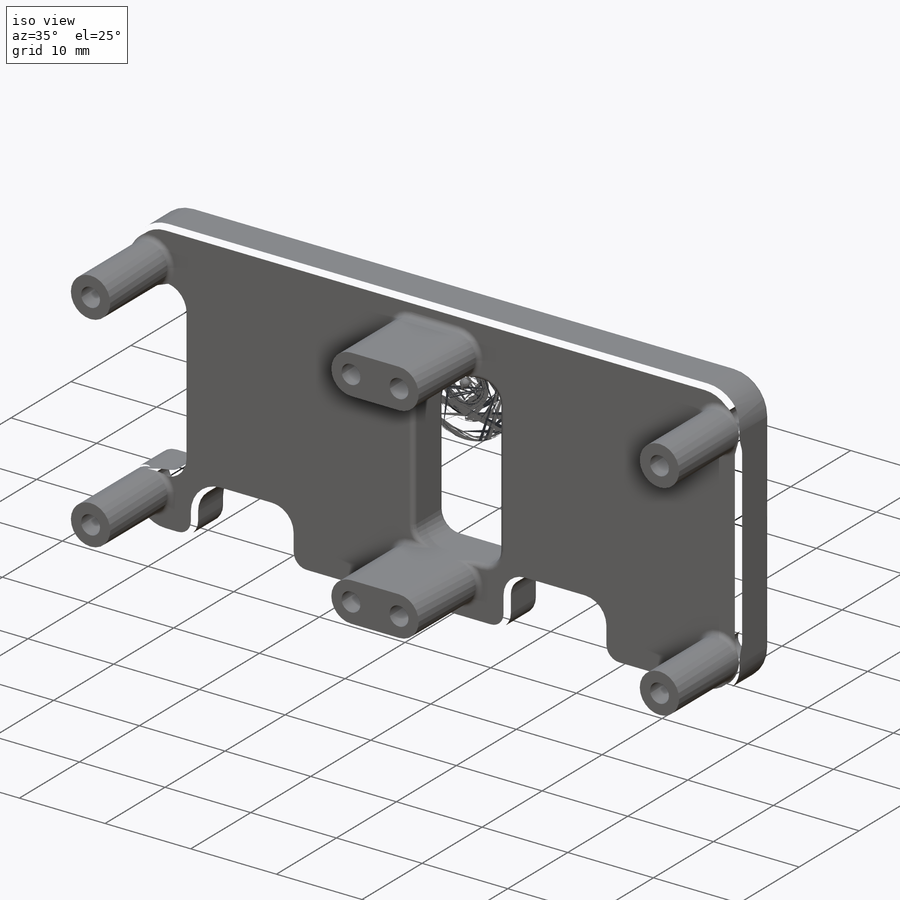
[diagram: iso view]
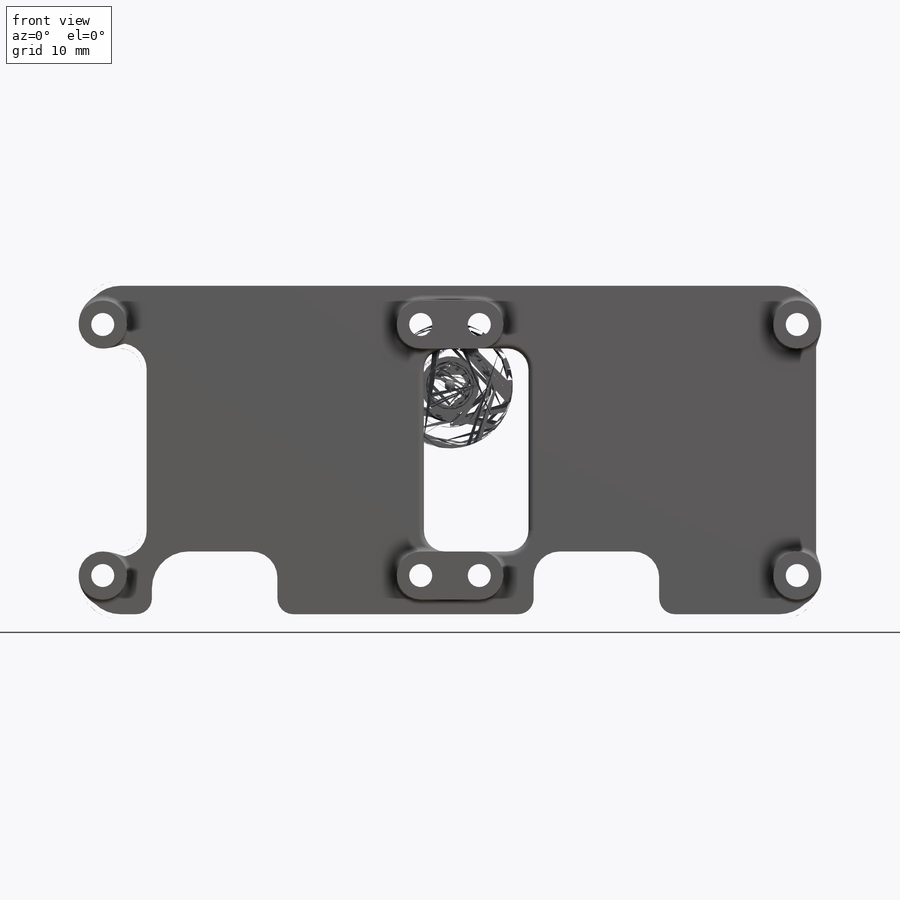
[diagram: front view]
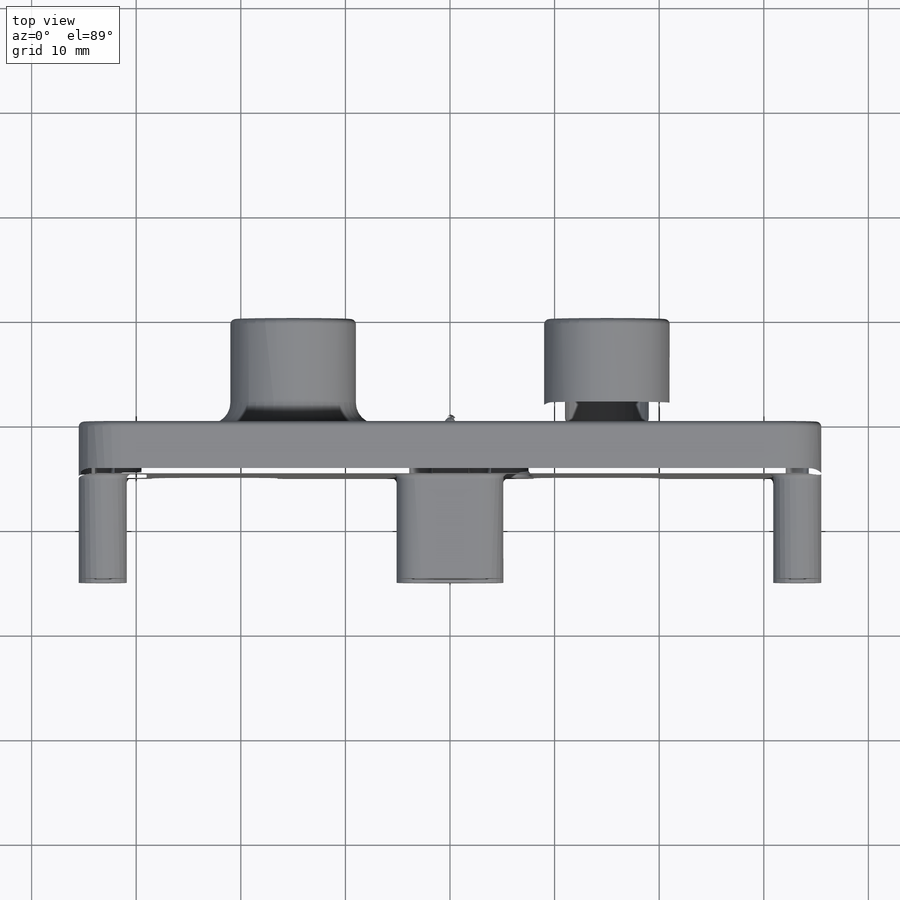
[diagram: top view]
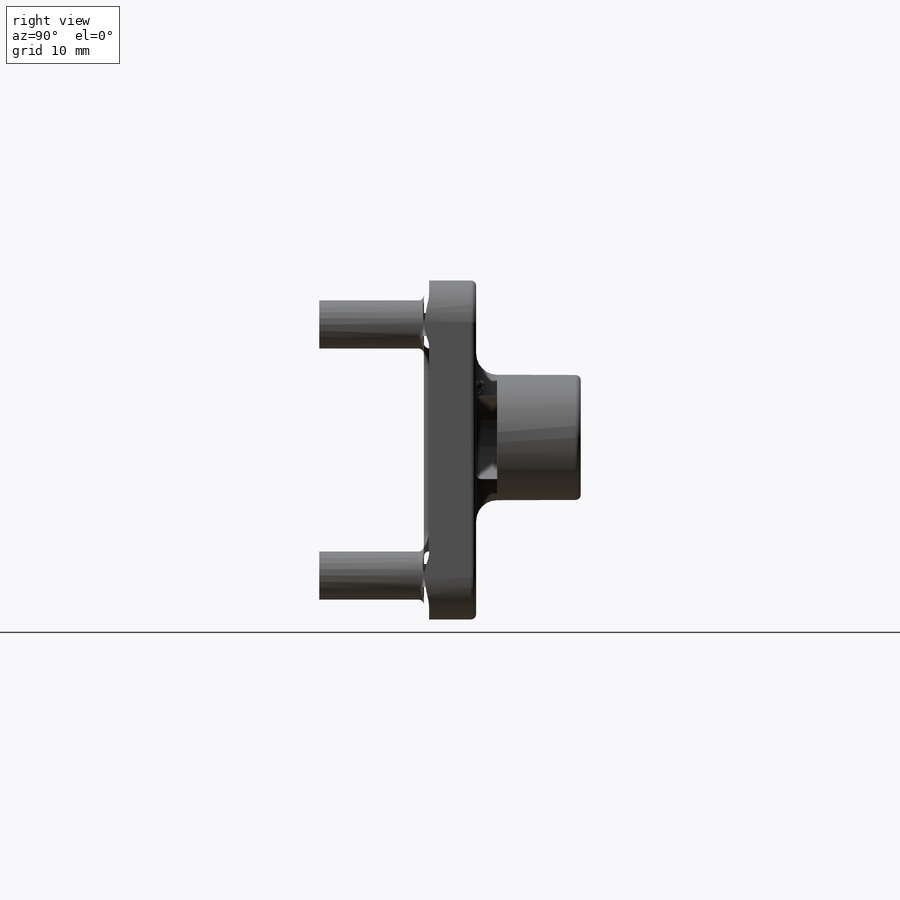
[diagram: right view]
SOLIDWORKS PART (.sldprt)
format: sldprt  version: not decoded by parser v0  size: 1,148,928 bytes
history: native  units: mm
features: plane x6, fillet x6, sketch x5, extrude x3, cut_extrude x2, material x1 (+9 scaffold rows collapsed)
feature tree (32):
  scaffold x9  (default folders/planes/origin — collapsed)
  material  "ABS"
  plane  "Ebene vorne"
  plane  "Ebene oben"
  plane  "Ebene rechts"
  sketch  "Skizze2"  dims[D1=32.4mm D2=71.0mm D3=35.5mm D4=71.0mm]
  extrude  "Aufsatz-Linear austragen1"  Depth=5mm
  plane  "Ebene1"
  plane  "Ebene2"
  sketch  "Skizze3"  dims[c1.D3=2.2mm c1.D6=4.6mm c1.D1=30.4mm c1.D2=24.0mm c1.D4=2.8mm c1.D5=12.0mm c2.D6=2.8mm c2.D7=4.6mm c2.D8=32.4mm]
  extrude  "Aufsatz-Linear austragen2"  Depth=10mm
  fillet  "Verrundung3"  Radius=4mm
  sketch  "Skizze4"  dims[D1=0.0mm D2=0.0mm]
  cut_extrude  "Schnitt-Linear austragen1"  [1 undecoded]
  sketch  "Skizze5"  dims[c1.D1=11.0mm c1.D2=16.0mm c1.D3=6.0mm c1.D4=10.0mm c1.D5=20.0mm c1.D6=6.5mm c1.D7=28.0mm c1.D8=6.0mm c1.D9=6.5mm c1.D10=10.0mm c2.D5=6.5mm c2.D10=11.0mm c2.D11=7.5mm c2.D12=6.0mm]
  cut_extrude  "Schnitt-Linear austragen2"  [1 undecoded]
  plane  "Ebene3"
  sketch  "Skizze6"  dims[c1.D1=12.0mm c1.D2=8.0mm c2.D1=12.0mm c2.D3=15.0mm c2.D4=30.0mm c2.D5=15.0mm]
  extrude  "Aufsatz-Linear austragen3"  Depth=10mm
  fillet  "Verrundung4"  Radius=2mm
  fillet  "Verrundung15"  Radius=3mm
  fillet  "Verrundung6"  Radius=0.5mm
  fillet  "Verrundung7"  Radius=2mm
  fillet  "Verrundung14"  Radius=0.5mm
decode coverage: 14 of 16 modeling features carry decoded parameters
note: 2 parameter values undecoded
note: suppression state not decoded; provenance and decode notes live in map.json
